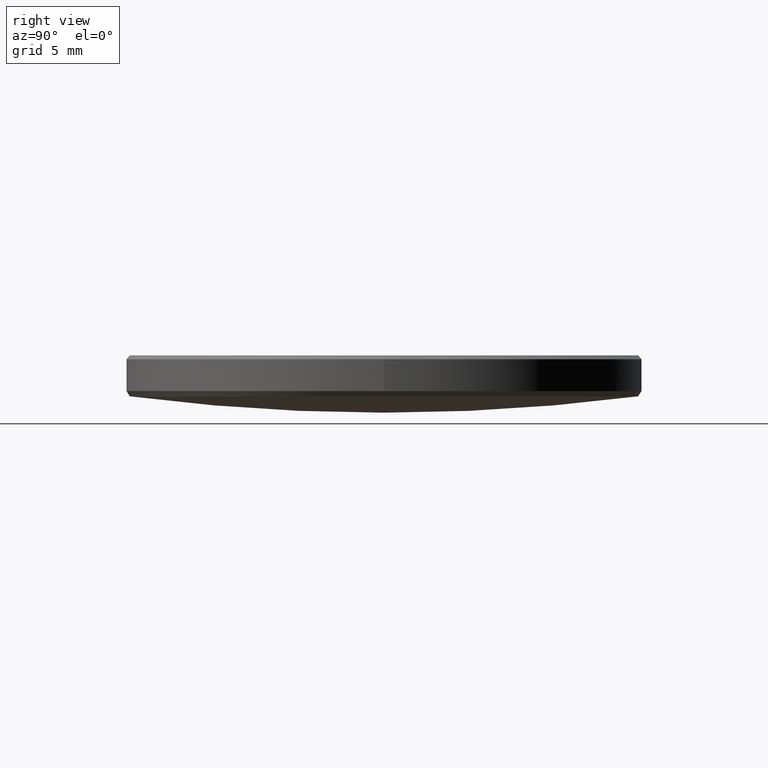
[diagram: clean part render]
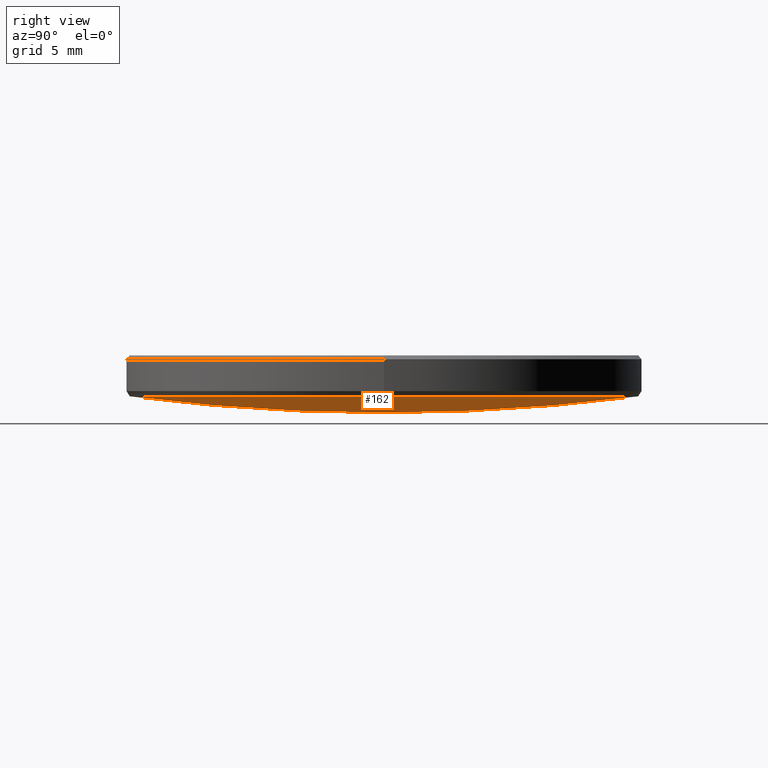
[diagram: same view with one face highlighted and labeled with its STEP entity id]
A machine part, right view. The second image highlights one B-rep face of the part: STEP entity #162.
In plain terms, the highlighted spherical surface has radius 97.61 mm.
Its self-contained STEP definition (entity closure, byte-faithful):
#4 = CARTESIAN_POINT ( 'NONE',  ( 0.000000000000000000, 0.000000000000000000, 100.7802774329563533 ) ) ;
#8 = ORIENTED_EDGE ( 'NONE', *, *, #278, .T. ) ;
#25 = DIRECTION ( 'NONE',  ( -1.000000000000000000, 0.000000000000000000, 0.000000000000000000 ) ) ;
#72 = VERTEX_POINT ( 'NONE', #203 ) ;
#73 = CIRCLE ( 'NONE', #288, 97.60999999999999943 ) ;
#78 = EDGE_CURVE ( 'NONE', #72, #172, #280, .T. ) ;
#82 = CARTESIAN_POINT ( 'NONE',  ( -1.531038268722624004E-15, -12.50187621270551297, 3.974207420987641015 ) ) ;
#84 = DIRECTION ( 'NONE',  ( 0.000000000000000000, 1.000000000000000000, 0.000000000000000000 ) ) ;
#85 = AXIS2_PLACEMENT_3D ( 'NONE', #205, #25, #84 ) ;
#94 = VERTEX_POINT ( 'NONE', #164 ) ;
#100 = VERTEX_POINT ( 'NONE', #82 ) ;
#112 = DIRECTION ( 'NONE',  ( 0.000000000000000000, 0.000000000000000000, -1.000000000000000000 ) ) ;
#115 = DIRECTION ( 'NONE',  ( 1.000000000000000000, -0.000000000000000000, 0.000000000000000000 ) ) ;
#121 = DIRECTION ( 'NONE',  ( 0.000000000000000000, 0.000000000000000000, -1.000000000000000000 ) ) ;
#131 = AXIS2_PLACEMENT_3D ( 'NONE', #140, #112, #212 ) ;
#135 = FACE_OUTER_BOUND ( 'NONE', #179, .T. ) ;
#136 = AXIS2_PLACEMENT_3D ( 'NONE', #181, #233, #234 ) ;
#138 = EDGE_CURVE ( 'NONE', #94, #100, #73, .T. ) ;
#140 = CARTESIAN_POINT ( 'NONE',  ( 0.000000000000000000, 0.000000000000000000, 3.974207420987641015 ) ) ;
#150 = ORIENTED_EDGE ( 'NONE', *, *, #78, .T. ) ;
#153 = CIRCLE ( 'NONE', #131, 12.50187621270549165 ) ;
#162 = ADVANCED_FACE ( 'NONE', ( #135 ), #229, .T. ) ;
#164 = CARTESIAN_POINT ( 'NONE',  ( 0.000000000000000000, 5.976888703238657615E-15, 3.170277432956350339 ) ) ;
#172 = VERTEX_POINT ( 'NONE', #303 ) ;
#179 = EDGE_LOOP ( 'NONE', ( #271, #8, #150, #315 ) ) ;
#180 = DIRECTION ( 'NONE',  ( -1.000000000000000000, 1.224646799147353207E-16, 0.000000000000000000 ) ) ;
#181 = CARTESIAN_POINT ( 'NONE',  ( 0.000000000000000000, 0.000000000000000000, 3.974207420987641015 ) ) ;
#191 = CIRCLE ( 'NONE', #296, 97.60999999999999943 ) ;
#203 = CARTESIAN_POINT ( 'NONE',  ( 0.000000000000000000, 12.50187621270551297, 3.974207420987641015 ) ) ;
#205 = CARTESIAN_POINT ( 'NONE',  ( 0.000000000000000000, 0.000000000000000000, 100.7802774329563533 ) ) ;
#207 = CARTESIAN_POINT ( 'NONE',  ( 0.000000000000000000, 0.000000000000000000, 100.7802774329563533 ) ) ;
#212 = DIRECTION ( 'NONE',  ( 1.000000000000000000, 0.000000000000000000, 0.000000000000000000 ) ) ;
#229 = SPHERICAL_SURFACE ( 'NONE', #85, 97.60999999999999943 ) ;
#233 = DIRECTION ( 'NONE',  ( 0.000000000000000000, 0.000000000000000000, -1.000000000000000000 ) ) ;
#234 = DIRECTION ( 'NONE',  ( 1.000000000000000000, 0.000000000000000000, 0.000000000000000000 ) ) ;
#258 = DIRECTION ( 'NONE',  ( -1.224646799147353207E-16, -1.000000000000000000, 0.000000000000000000 ) ) ;
#271 = ORIENTED_EDGE ( 'NONE', *, *, #138, .F. ) ;
#278 = EDGE_CURVE ( 'NONE', #94, #72, #191, .T. ) ;
#280 = CIRCLE ( 'NONE', #136, 12.50187621270549165 ) ;
#288 = AXIS2_PLACEMENT_3D ( 'NONE', #207, #180, #258 ) ;
#296 = AXIS2_PLACEMENT_3D ( 'NONE', #4, #115, #121 ) ;
#303 = CARTESIAN_POINT ( 'NONE',  ( 12.50187621270549165, 0.000000000000000000, 3.974207420987641015 ) ) ;
#306 = EDGE_CURVE ( 'NONE', #172, #100, #153, .T. ) ;
#315 = ORIENTED_EDGE ( 'NONE', *, *, #306, .T. ) ;